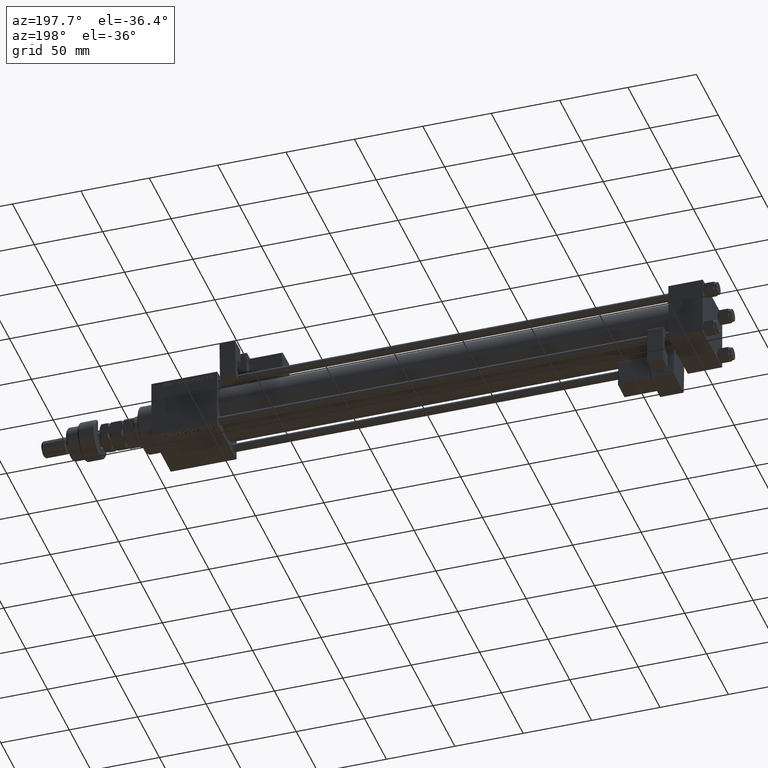
[diagram: clean part render]
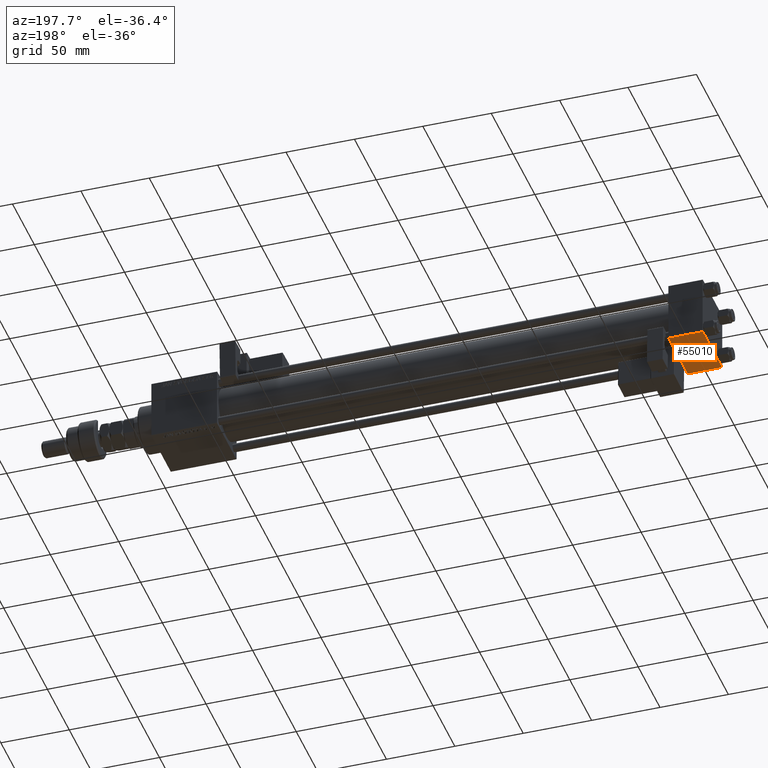
[diagram: same view with one face highlighted and labeled with its STEP entity id]
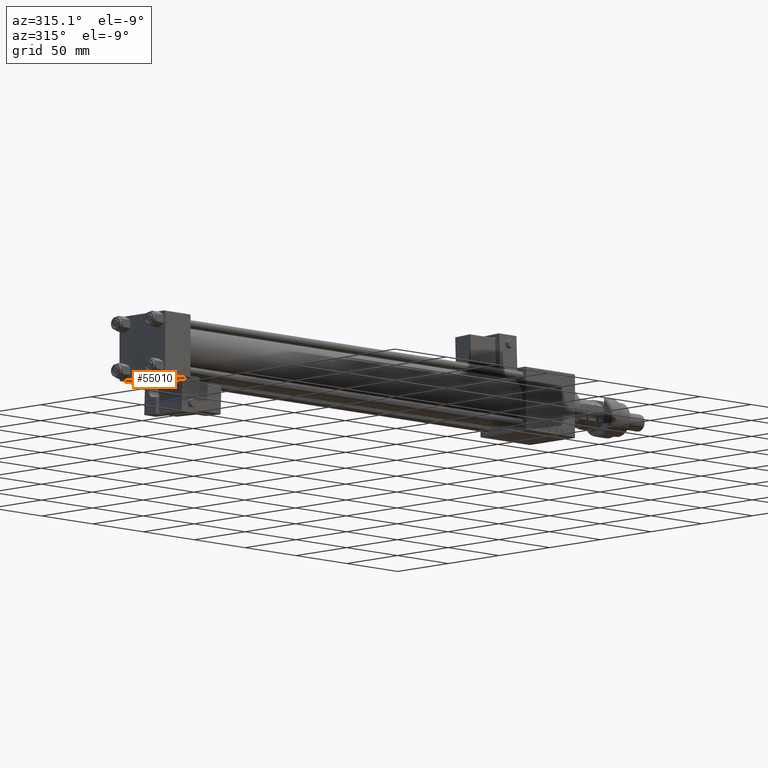
[diagram: same view with one face highlighted and labeled with its STEP entity id]
A machine part, auxiliary view. The second image highlights one B-rep face of the part: STEP entity #55010.
A second angle (auxiliary view) of the same face is appended — the face is thin or edge-on in the first view.
In plain terms, the highlighted planar face has unit normal (0, 0, -1).
Its self-contained STEP definition (entity closure, byte-faithful):
#1044 = CARTESIAN_POINT ( 'NONE',  ( 25.00000000000000000, 21.99999999999999289, -22.49999999999999645 ) ) ;
#3921 = EDGE_LOOP ( 'NONE', ( #45111, #16297, #18656, #43184 ) ) ;
#4278 = EDGE_CURVE ( 'NONE', #49423, #32114, #50896, .T. ) ;
#4327 = VERTEX_POINT ( 'NONE', #16704 ) ;
#9169 = LINE ( 'NONE', #21465, #46878 ) ;
#9722 = LINE ( 'NONE', #14467, #35337 ) ;
#9984 = CARTESIAN_POINT ( 'NONE',  ( 25.00000000000000000, -21.99999999999997158, -22.50000000000000711 ) ) ;
#13499 = FACE_OUTER_BOUND ( 'NONE', #3921, .T. ) ;
#14467 = CARTESIAN_POINT ( 'NONE',  ( 0.000000000000000000, 22.50000000000000000, -22.49999999999999645 ) ) ;
#16181 = CARTESIAN_POINT ( 'NONE',  ( 0.000000000000000000, 21.99999999999999289, -22.49999999999999645 ) ) ;
#16297 = ORIENTED_EDGE ( 'NONE', *, *, #47586, .T. ) ;
#16704 = CARTESIAN_POINT ( 'NONE',  ( 0.000000000000000000, -21.99999999999997158, -22.50000000000000711 ) ) ;
#17679 = EDGE_CURVE ( 'NONE', #52715, #4327, #9722, .T. ) ;
#18656 = ORIENTED_EDGE ( 'NONE', *, *, #4278, .T. ) ;
#21465 = CARTESIAN_POINT ( 'NONE',  ( 25.00000000000000000, 21.99999999999999289, -22.49999999999999645 ) ) ;
#21870 = CARTESIAN_POINT ( 'NONE',  ( 0.000000000000000000, -21.99999999999998579, -22.50000000000000711 ) ) ;
#25526 = LINE ( 'NONE', #21870, #45388 ) ;
#25819 = DIRECTION ( 'NONE',  ( 0.000000000000000000, 1.000000000000000000, 2.312964634635742957E-16 ) ) ;
#26120 = PLANE ( 'NONE',  #32016 ) ;
#26822 = DIRECTION ( 'NONE',  ( 0.000000000000000000, -1.000000000000000000, -2.312964634635742957E-16 ) ) ;
#30174 = DIRECTION ( 'NONE',  ( 0.000000000000000000, -1.000000000000000000, -2.312964634635742957E-16 ) ) ;
#32016 = AXIS2_PLACEMENT_3D ( 'NONE', #43181, #43744, #25819 ) ;
#32114 = VERTEX_POINT ( 'NONE', #9984 ) ;
#34375 = CARTESIAN_POINT ( 'NONE',  ( 25.00000000000000000, 22.50000000000000000, -22.49999999999999645 ) ) ;
#35337 = VECTOR ( 'NONE', #26822, 1000.000000000000000 ) ;
#38332 = VECTOR ( 'NONE', #30174, 1000.000000000000000 ) ;
#43181 = CARTESIAN_POINT ( 'NONE',  ( 25.00000000000000000, 22.50000000000000000, -22.49999999999999645 ) ) ;
#43184 = ORIENTED_EDGE ( 'NONE', *, *, #54147, .T. ) ;
#43744 = DIRECTION ( 'NONE',  ( 0.000000000000000000, 2.312964634635742957E-16, -1.000000000000000000 ) ) ;
#45111 = ORIENTED_EDGE ( 'NONE', *, *, #17679, .F. ) ;
#45388 = VECTOR ( 'NONE', #55229, 1000.000000000000000 ) ;
#46878 = VECTOR ( 'NONE', #50627, 1000.000000000000000 ) ;
#47586 = EDGE_CURVE ( 'NONE', #52715, #49423, #9169, .T. ) ;
#49423 = VERTEX_POINT ( 'NONE', #1044 ) ;
#50627 = DIRECTION ( 'NONE',  ( 1.000000000000000000, 0.000000000000000000, 0.000000000000000000 ) ) ;
#50896 = LINE ( 'NONE', #34375, #38332 ) ;
#52715 = VERTEX_POINT ( 'NONE', #16181 ) ;
#54147 = EDGE_CURVE ( 'NONE', #32114, #4327, #25526, .T. ) ;
#55010 = ADVANCED_FACE ( 'NONE', ( #13499 ), #26120, .T. ) ;
#55229 = DIRECTION ( 'NONE',  ( -1.000000000000000000, 0.000000000000000000, 0.000000000000000000 ) ) ;